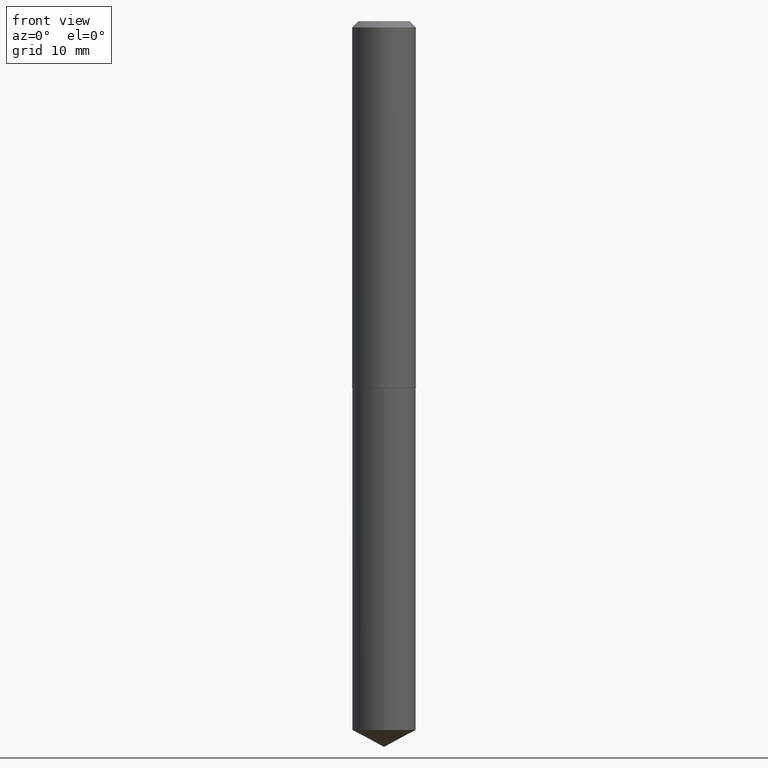
[diagram: clean part render]
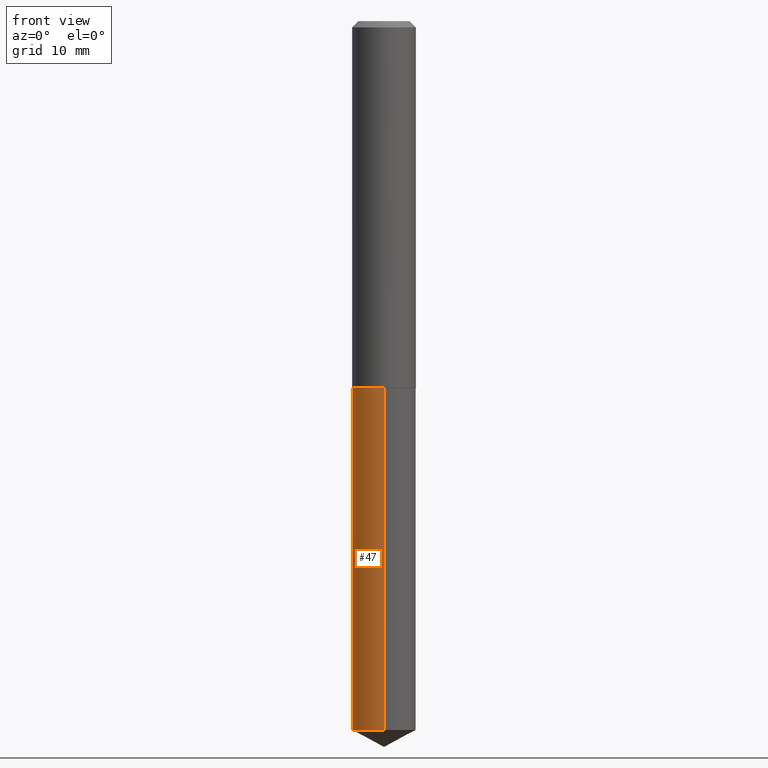
[diagram: same view with one face highlighted and labeled with its STEP entity id]
A machine part, front view. The second image highlights one B-rep face of the part: STEP entity #47.
In plain terms, the highlighted cylindrical surface (edge-blend (fillet) strip) has radius 4.0005 mm, axis along (-0, 0, 1).
Its self-contained STEP definition (entity closure, byte-faithful):
#16 = CARTESIAN_POINT ( 'NONE',  ( 8.558331646037396296E-29, -1.221404057733872475E-14, -3.498955764513318023 ) ) ;
#19 = ORIENTED_EDGE ( 'NONE', *, *, #347, .T. ) ;
#27 = VERTEX_POINT ( 'NONE', #315 ) ;
#28 = DIRECTION ( 'NONE',  ( -2.446502348111579145E-29, 3.490001247978926610E-15, 1.000000000000000000 ) ) ;
#31 = VECTOR ( 'NONE', #159, 39.37007874015748143 ) ;
#46 = CARTESIAN_POINT ( 'NONE',  ( 1.119104808822201977E-15, 0.1574999999999936728, -1.811100000000000820 ) ) ;
#47 = ADVANCED_FACE ( 'NONE', ( #364 ), #338, .T. ) ;
#66 = EDGE_CURVE ( 'NONE', #321, #133, #153, .T. ) ;
#70 = CARTESIAN_POINT ( 'NONE',  ( -1.099816621735542318E-15, -0.1575000000000063016, -1.811099999999999710 ) ) ;
#86 = DIRECTION ( 'NONE',  ( -6.982962677686264344E-15, -1.000000000000000000, 3.469013325287953293E-15 ) ) ;
#100 = EDGE_LOOP ( 'NONE', ( #236, #304, #19, #325 ) ) ;
#102 = DIRECTION ( 'NONE',  ( -6.982962677686264344E-15, -1.000000000000000000, 3.469013325287953293E-15 ) ) ;
#110 = LINE ( 'NONE', #223, #31 ) ;
#115 = CARTESIAN_POINT ( 'NONE',  ( 4.428988554881901583E-29, -6.323421852778821873E-15, -1.811100000000000154 ) ) ;
#129 = VERTEX_POINT ( 'NONE', #300 ) ;
#133 = VERTEX_POINT ( 'NONE', #70 ) ;
#144 = AXIS2_PLACEMENT_3D ( 'NONE', #16, #28, #102 ) ;
#153 = CIRCLE ( 'NONE', #329, 0.1575000000000000011 ) ;
#159 = DIRECTION ( 'NONE',  ( -2.446502348111579425E-29, 3.490001247978926610E-15, 1.000000000000000000 ) ) ;
#184 = CARTESIAN_POINT ( 'NONE',  ( 1.119104808822243392E-15, 0.1574999999999936728, -1.811100000000000820 ) ) ;
#193 = DIRECTION ( 'NONE',  ( -2.446502348111579145E-29, 3.490001247978926610E-15, 1.000000000000000000 ) ) ;
#205 = CIRCLE ( 'NONE', #144, 0.1575000000000000011 ) ;
#222 = DIRECTION ( 'NONE',  ( -2.446502348111579425E-29, 3.490001247978926610E-15, 1.000000000000000000 ) ) ;
#223 = CARTESIAN_POINT ( 'NONE',  ( -1.099816621735542318E-15, -0.1575000000000063016, -1.811099999999999710 ) ) ;
#236 = ORIENTED_EDGE ( 'NONE', *, *, #240, .F. ) ;
#238 = VECTOR ( 'NONE', #222, 39.37007874015748143 ) ;
#240 = EDGE_CURVE ( 'NONE', #129, #321, #288, .T. ) ;
#278 = DIRECTION ( 'NONE',  ( -6.982962677686264344E-15, -1.000000000000000000, 3.469013325287953293E-15 ) ) ;
#288 = LINE ( 'NONE', #46, #238 ) ;
#300 = CARTESIAN_POINT ( 'NONE',  ( 1.119104808822243392E-15, 0.1574999999999877887, -3.498955764513318467 ) ) ;
#304 = ORIENTED_EDGE ( 'NONE', *, *, #314, .T. ) ;
#309 = CARTESIAN_POINT ( 'NONE',  ( 4.428988554881901583E-29, -6.323421852778821873E-15, -1.811100000000000154 ) ) ;
#314 = EDGE_CURVE ( 'NONE', #129, #27, #205, .T. ) ;
#315 = CARTESIAN_POINT ( 'NONE',  ( -1.099816621735501297E-15, -0.1575000000000122413, -3.498955764513317135 ) ) ;
#321 = VERTEX_POINT ( 'NONE', #184 ) ;
#325 = ORIENTED_EDGE ( 'NONE', *, *, #66, .F. ) ;
#329 = AXIS2_PLACEMENT_3D ( 'NONE', #115, #341, #86 ) ;
#338 = CYLINDRICAL_SURFACE ( 'NONE', #362, 0.1575000000000000011 ) ;
#341 = DIRECTION ( 'NONE',  ( -2.446502348111579145E-29, 3.490001247978926610E-15, 1.000000000000000000 ) ) ;
#347 = EDGE_CURVE ( 'NONE', #27, #133, #110, .T. ) ;
#362 = AXIS2_PLACEMENT_3D ( 'NONE', #309, #193, #278 ) ;
#364 = FACE_OUTER_BOUND ( 'NONE', #100, .T. ) ;